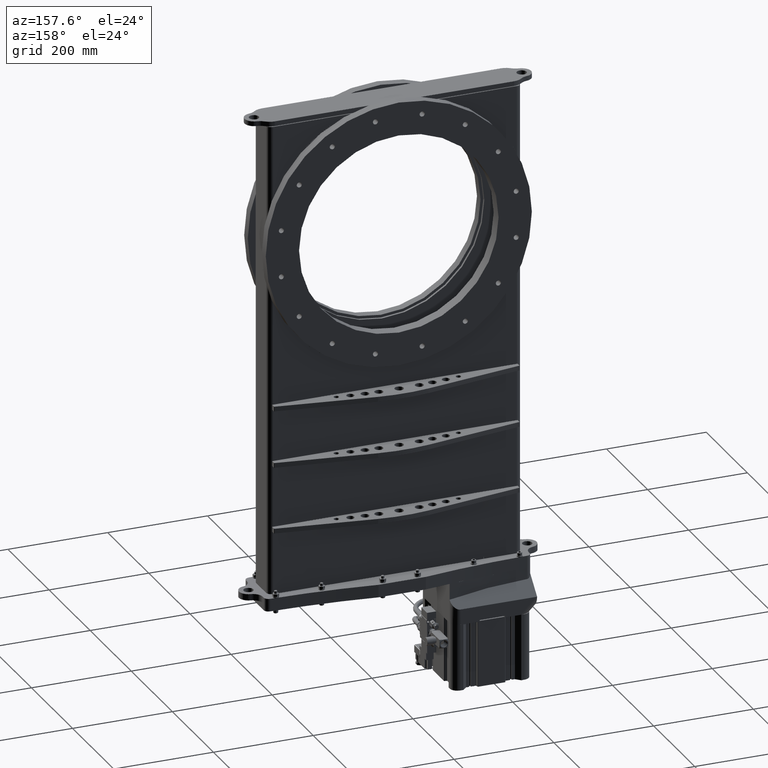
[diagram: clean part render]
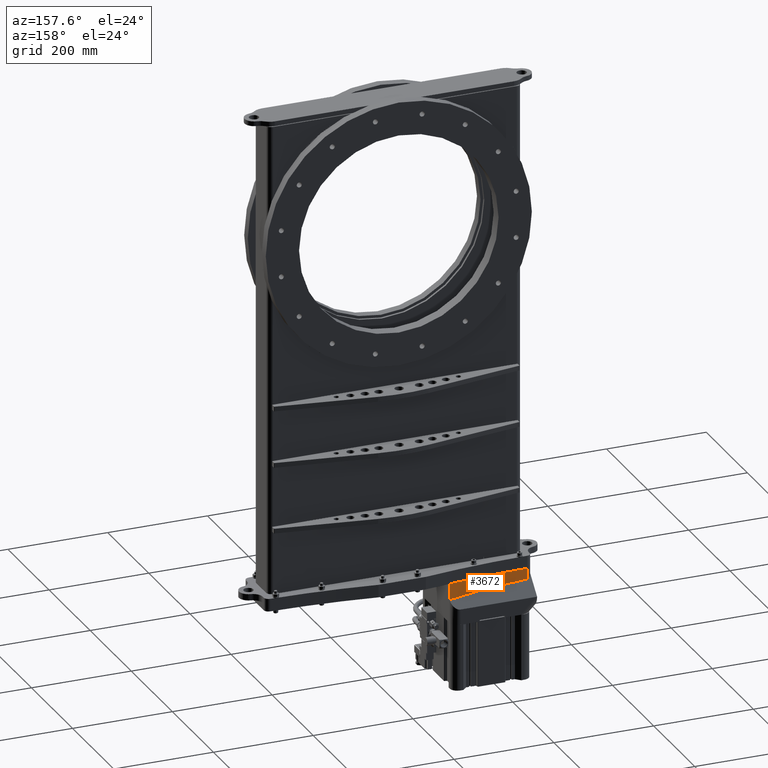
[diagram: same view with one face highlighted and labeled with its STEP entity id]
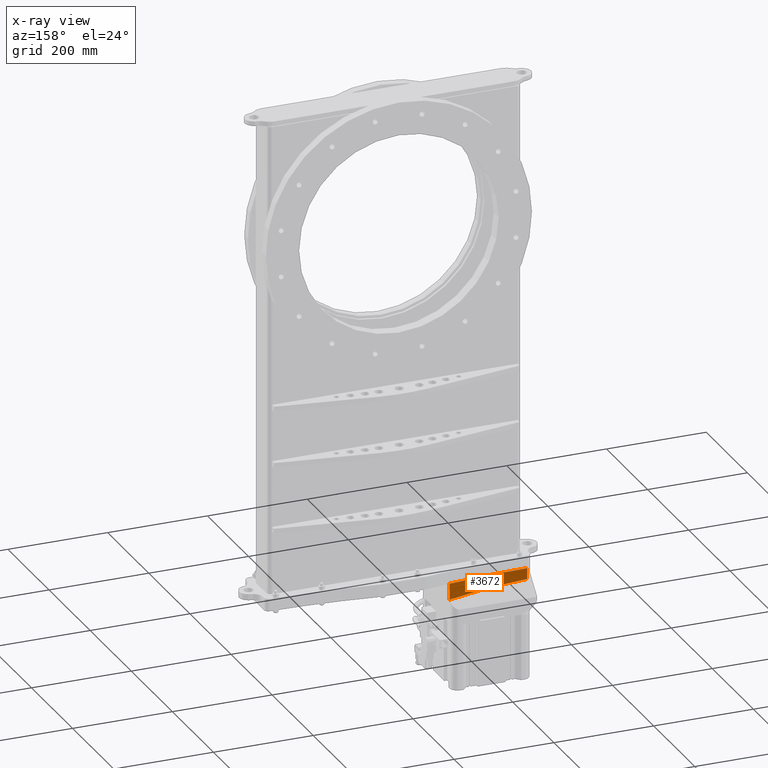
[diagram: x-ray of the same camera — body ghosted, the highlighted face saturated]
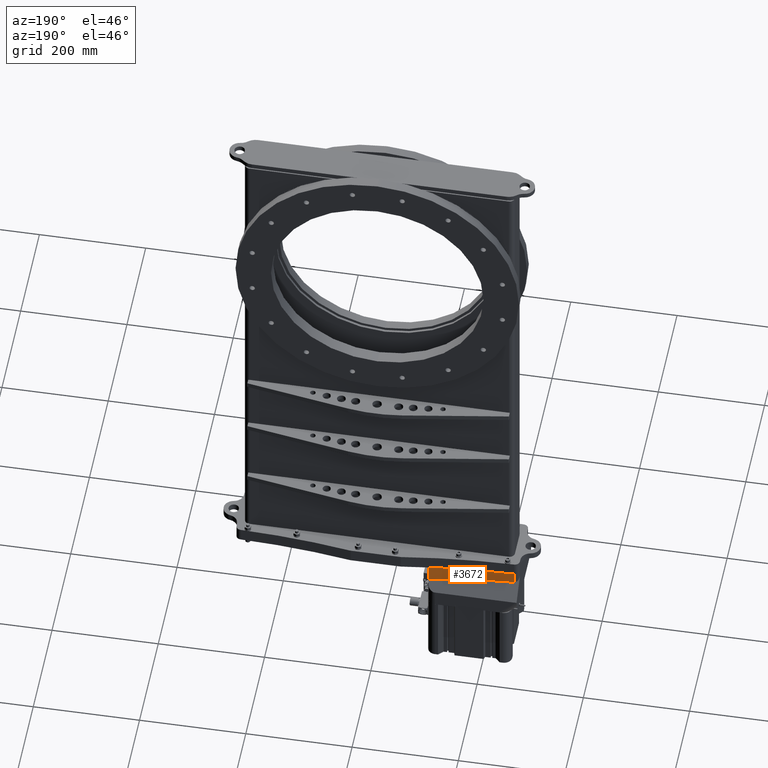
[diagram: same view with one face highlighted and labeled with its STEP entity id]
A machine part, auxiliary view. The second image highlights one B-rep face of the part: STEP entity #3672.
The next image is the same camera in x-ray: the body ghosted, the highlighted face saturated — about 0% of this face is hidden behind the body in this view.
A second angle (auxiliary view) of the same face is appended — the face is thin or edge-on in the first view.
In plain terms, the highlighted cylindrical surface (partial cylindrical patch) has radius 1524 mm, axis along (-0, -0, 1).
Its self-contained STEP definition (entity closure, byte-faithful):
#2448 = CARTESIAN_POINT ( 'NONE',  ( -10.94257822103818600, -13.62514540858060600, 3.964327947744285200 ) ) ;
#3672 = ADVANCED_FACE ( 'NONE', ( #46229 ), #59954, .F. ) ;
#3888 = LINE ( 'NONE', #8971, #56379 ) ;
#6588 = VERTEX_POINT ( 'NONE', #8570 ) ;
#6885 = CARTESIAN_POINT ( 'NONE',  ( -10.94257822103818600, -13.62514540858060600, 3.464327947744285200 ) ) ;
#8570 = CARTESIAN_POINT ( 'NONE',  ( -10.13007812559656700, -73.61964385297903800, 3.964327947744285200 ) ) ;
#8758 =( BOUNDED_CURVE ( )  B_SPLINE_CURVE ( 3, ( #25829, #30290, #25230, #59859 ),
 .UNSPECIFIED., .F., .T. ) 
 B_SPLINE_CURVE_WITH_KNOTS ( ( 4, 4 ),
 ( 6.164698623757185900, 6.269643225016817900 ),
 .UNSPECIFIED. ) 
 CURVE ( )  GEOMETRIC_REPRESENTATION_ITEM ( )  RATIONAL_B_SPLINE_CURVE ( ( 1.000000000000000000, 0.9990824297832681100, 0.9990824297832681100, 1.000000000000000000 ) ) 
 REPRESENTATION_ITEM ( '' )  );
#8971 = CARTESIAN_POINT ( 'NONE',  ( -3.850000000000065400, -73.20446509400899500, 3.464327947744285200 ) ) ;
#9831 = VERTEX_POINT ( 'NONE', #56268 ) ;
#12239 = LINE ( 'NONE', #37807, #52552 ) ;
#12343 = ORIENTED_EDGE ( 'NONE', *, *, #50175, .F. ) ;
#13381 = CIRCLE ( 'NONE', #63157, 60.00000000000016300 ) ;
#16652 = ORIENTED_EDGE ( 'NONE', *, *, #38018, .T. ) ;
#22011 = DIRECTION ( 'NONE',  ( 1.000000000000000000, 0.0000000000000000000, 0.0000000000000000000 ) ) ;
#22868 = EDGE_CURVE ( 'NONE', #9831, #6588, #12239, .T. ) ;
#23579 = DIRECTION ( 'NONE',  ( -0.0000000000000000000, -0.0000000000000000000, 1.000000000000000000 ) ) ;
#24965 = CARTESIAN_POINT ( 'NONE',  ( -3.850000000000065400, -73.20446509400899500, 2.692779951057478400 ) ) ;
#25230 = CARTESIAN_POINT ( 'NONE',  ( -8.030414905308900200, -73.59120830286839500, 3.079523159916871800 ) ) ;
#25829 = CARTESIAN_POINT ( 'NONE',  ( -3.850000000000065400, -73.20446509400899500, 2.692779951057478400 ) ) ;
#26884 = DIRECTION ( 'NONE',  ( -0.0000000000000000000, 0.0000000000000000000, 1.000000000000000000 ) ) ;
#30290 = CARTESIAN_POINT ( 'NONE',  ( -5.935132961803055300, -73.45268828136555300, 2.941003138414035600 ) ) ;
#31920 = VERTEX_POINT ( 'NONE', #24965 ) ;
#33809 = EDGE_LOOP ( 'NONE', ( #46403, #12343, #16652, #54466 ) ) ;
#34005 = DIRECTION ( 'NONE',  ( -0.0000000000000000000, -0.0000000000000000000, 1.000000000000000000 ) ) ;
#34670 = VERTEX_POINT ( 'NONE', #39802 ) ;
#37807 = CARTESIAN_POINT ( 'NONE',  ( -10.13007812559656700, -73.61964385297903800, 3.464327947744285200 ) ) ;
#38018 = EDGE_CURVE ( 'NONE', #31920, #9831, #8758, .T. ) ;
#39802 = CARTESIAN_POINT ( 'NONE',  ( -3.850000000000065400, -73.20446509400899500, 3.964327947744285200 ) ) ;
#39980 = EDGE_CURVE ( 'NONE', #6588, #34670, #13381, .T. ) ;
#42441 = AXIS2_PLACEMENT_3D ( 'NONE', #6885, #50659, #22011 ) ;
#46229 = FACE_OUTER_BOUND ( 'NONE', #33809, .T. ) ;
#46403 = ORIENTED_EDGE ( 'NONE', *, *, #39980, .T. ) ;
#50175 = EDGE_CURVE ( 'NONE', #31920, #34670, #3888, .T. ) ;
#50659 = DIRECTION ( 'NONE',  ( -0.0000000000000000000, -0.0000000000000000000, 1.000000000000000000 ) ) ;
#50867 = DIRECTION ( 'NONE',  ( 1.000000000000000000, 0.0000000000000000000, 0.0000000000000000000 ) ) ;
#52552 = VECTOR ( 'NONE', #23579, 39.37007874015748100 ) ;
#54466 = ORIENTED_EDGE ( 'NONE', *, *, #22868, .T. ) ;
#56268 = CARTESIAN_POINT ( 'NONE',  ( -10.13007812559656700, -73.61964385297903800, 3.107958710027520800 ) ) ;
#56379 = VECTOR ( 'NONE', #34005, 39.37007874015748100 ) ;
#59859 = CARTESIAN_POINT ( 'NONE',  ( -10.13007812559656700, -73.61964385297903800, 3.107958710027520800 ) ) ;
#59954 = CYLINDRICAL_SURFACE ( 'NONE', #42441, 60.00000000000016300 ) ;
#63157 = AXIS2_PLACEMENT_3D ( 'NONE', #2448, #26884, #50867 ) ;